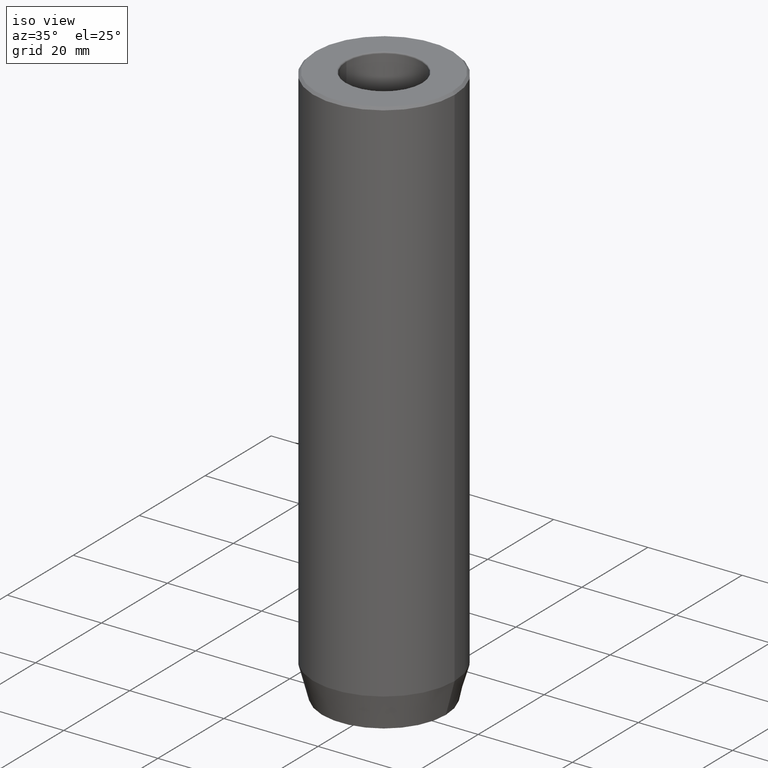
[diagram: clean part render]
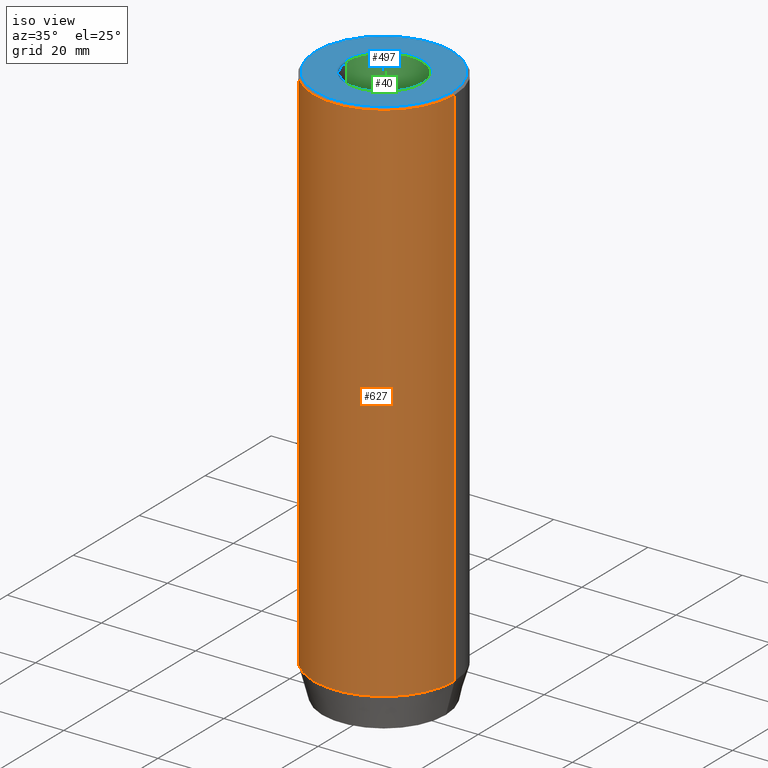
[diagram: same view with three faces highlighted in distinct colors, each labeled with its STEP entity id]
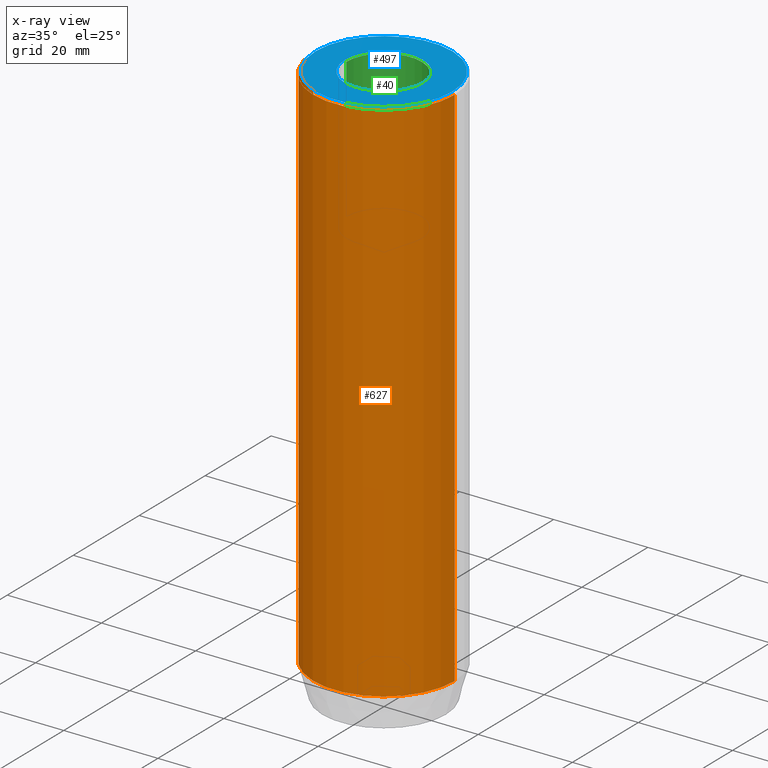
[diagram: x-ray of the same camera — body ghosted, the three highlighted faces saturated]
A machine part, iso view with three faces highlighted in distinct colors.
The next image is the same camera in x-ray (body ghosted, the three faces saturated) — at least one of them is partly hidden behind the body in this view.
Their STEP definitions:

[orange] entity #627 — the highlighted cylindrical surface (partial cylindrical patch) has radius 15 mm, axis along (-0, -0, 1).
#21 = CARTESIAN_POINT ( 'NONE',  ( 0.000000000000000000, 0.000000000000000000, -112.9999999999999858 ) ) ;
#39 = CARTESIAN_POINT ( 'NONE',  ( -15.00000000000000000, 1.836970198721029589E-15, -112.9999999999999858 ) ) ;
#58 = CIRCLE ( 'NONE', #538, 15.00000000000000000 ) ;
#61 = ORIENTED_EDGE ( 'NONE', *, *, #132, .F. ) ;
#70 = VERTEX_POINT ( 'NONE', #230 ) ;
#89 = DIRECTION ( 'NONE',  ( -0.000000000000000000, -0.000000000000000000, 1.000000000000000000 ) ) ;
#94 = LINE ( 'NONE', #574, #143 ) ;
#114 = CIRCLE ( 'NONE', #284, 15.00000000000000000 ) ;
#131 = EDGE_LOOP ( 'NONE', ( #61, #282, #505, #327 ) ) ;
#132 = EDGE_CURVE ( 'NONE', #160, #70, #94, .T. ) ;
#143 = VECTOR ( 'NONE', #89, 1000.000000000000000 ) ;
#160 = VERTEX_POINT ( 'NONE', #39 ) ;
#211 = VECTOR ( 'NONE', #309, 1000.000000000000000 ) ;
#230 = CARTESIAN_POINT ( 'NONE',  ( -15.00000000000000000, 1.836970198721029589E-15, -0.4999999999999970024 ) ) ;
#238 = CARTESIAN_POINT ( 'NONE',  ( 0.000000000000000000, 0.000000000000000000, 0.000000000000000000 ) ) ;
#252 = DIRECTION ( 'NONE',  ( 1.000000000000000000, 0.000000000000000000, 0.000000000000000000 ) ) ;
#259 = EDGE_CURVE ( 'NONE', #262, #596, #496, .T. ) ;
#262 = VERTEX_POINT ( 'NONE', #602 ) ;
#274 = DIRECTION ( 'NONE',  ( -0.000000000000000000, -0.000000000000000000, 1.000000000000000000 ) ) ;
#282 = ORIENTED_EDGE ( 'NONE', *, *, #524, .T. ) ;
#284 = AXIS2_PLACEMENT_3D ( 'NONE', #21, #274, #318 ) ;
#303 = DIRECTION ( 'NONE',  ( -0.000000000000000000, -0.000000000000000000, 1.000000000000000000 ) ) ;
#309 = DIRECTION ( 'NONE',  ( -0.000000000000000000, -0.000000000000000000, 1.000000000000000000 ) ) ;
#318 = DIRECTION ( 'NONE',  ( 1.000000000000000000, 0.000000000000000000, 0.000000000000000000 ) ) ;
#327 = ORIENTED_EDGE ( 'NONE', *, *, #585, .T. ) ;
#352 = CARTESIAN_POINT ( 'NONE',  ( 0.000000000000000000, 0.000000000000000000, -0.4999999999999970024 ) ) ;
#389 = DIRECTION ( 'NONE',  ( 0.000000000000000000, 0.000000000000000000, -1.000000000000000000 ) ) ;
#468 = AXIS2_PLACEMENT_3D ( 'NONE', #238, #303, #252 ) ;
#496 = LINE ( 'NONE', #595, #211 ) ;
#505 = ORIENTED_EDGE ( 'NONE', *, *, #259, .T. ) ;
#524 = EDGE_CURVE ( 'NONE', #160, #262, #114, .T. ) ;
#538 = AXIS2_PLACEMENT_3D ( 'NONE', #352, #389, #587 ) ;
#540 = FACE_OUTER_BOUND ( 'NONE', #131, .T. ) ;
#542 = CARTESIAN_POINT ( 'NONE',  ( 15.00000000000000000, 0.000000000000000000, -0.4999999999999970024 ) ) ;
#573 = CYLINDRICAL_SURFACE ( 'NONE', #468, 15.00000000000000000 ) ;
#574 = CARTESIAN_POINT ( 'NONE',  ( -15.00000000000000000, 1.836970198721029589E-15, 0.000000000000000000 ) ) ;
#585 = EDGE_CURVE ( 'NONE', #596, #70, #58, .T. ) ;
#587 = DIRECTION ( 'NONE',  ( 1.000000000000000000, 0.000000000000000000, 0.000000000000000000 ) ) ;
#595 = CARTESIAN_POINT ( 'NONE',  ( 15.00000000000000000, 0.000000000000000000, 0.000000000000000000 ) ) ;
#596 = VERTEX_POINT ( 'NONE', #542 ) ;
#602 = CARTESIAN_POINT ( 'NONE',  ( 15.00000000000000000, 0.000000000000000000, -112.9999999999999858 ) ) ;
#627 = ADVANCED_FACE ( 'NONE', ( #540 ), #573, .T. ) ;

[blue] entity #497 — the highlighted planar face has unit normal (0, -0, 1).
#9 = ORIENTED_EDGE ( 'NONE', *, *, #316, .T. ) ;
#13 = CARTESIAN_POINT ( 'NONE',  ( 0.000000000000000000, 0.000000000000000000, 0.000000000000000000 ) ) ;
#17 = FACE_BOUND ( 'NONE', #270, .T. ) ;
#36 = CIRCLE ( 'NONE', #57, 8.299999999999997158 ) ;
#55 = ORIENTED_EDGE ( 'NONE', *, *, #365, .T. ) ;
#57 = AXIS2_PLACEMENT_3D ( 'NONE', #13, #97, #549 ) ;
#97 = DIRECTION ( 'NONE',  ( 0.000000000000000000, 0.000000000000000000, -1.000000000000000000 ) ) ;
#102 = CIRCLE ( 'NONE', #312, 14.49999999999999645 ) ;
#135 = DIRECTION ( 'NONE',  ( 1.000000000000000000, 0.000000000000000000, 0.000000000000000000 ) ) ;
#146 = AXIS2_PLACEMENT_3D ( 'NONE', #492, #625, #135 ) ;
#153 = EDGE_CURVE ( 'NONE', #178, #513, #452, .T. ) ;
#167 = CARTESIAN_POINT ( 'NONE',  ( 0.000000000000000000, 0.000000000000000000, 0.000000000000000000 ) ) ;
#178 = VERTEX_POINT ( 'NONE', #334 ) ;
#195 = VERTEX_POINT ( 'NONE', #539 ) ;
#220 = FACE_OUTER_BOUND ( 'NONE', #475, .T. ) ;
#254 = VERTEX_POINT ( 'NONE', #583 ) ;
#270 = EDGE_LOOP ( 'NONE', ( #380, #9 ) ) ;
#307 = AXIS2_PLACEMENT_3D ( 'NONE', #593, #381, #483 ) ;
#312 = AXIS2_PLACEMENT_3D ( 'NONE', #401, #353, #544 ) ;
#316 = EDGE_CURVE ( 'NONE', #513, #178, #36, .T. ) ;
#334 = CARTESIAN_POINT ( 'NONE',  ( 8.299999999999997158, 0.000000000000000000, 0.000000000000000000 ) ) ;
#348 = AXIS2_PLACEMENT_3D ( 'NONE', #167, #366, #553 ) ;
#353 = DIRECTION ( 'NONE',  ( -0.000000000000000000, -0.000000000000000000, 1.000000000000000000 ) ) ;
#365 = EDGE_CURVE ( 'NONE', #254, #195, #102, .T. ) ;
#366 = DIRECTION ( 'NONE',  ( 0.000000000000000000, -0.000000000000000000, 1.000000000000000000 ) ) ;
#380 = ORIENTED_EDGE ( 'NONE', *, *, #153, .T. ) ;
#381 = DIRECTION ( 'NONE',  ( -0.000000000000000000, -0.000000000000000000, 1.000000000000000000 ) ) ;
#401 = CARTESIAN_POINT ( 'NONE',  ( 0.000000000000000000, 0.000000000000000000, 0.000000000000000000 ) ) ;
#452 = CIRCLE ( 'NONE', #146, 8.299999999999997158 ) ;
#475 = EDGE_LOOP ( 'NONE', ( #55, #510 ) ) ;
#477 = PLANE ( 'NONE',  #348 ) ;
#482 = CIRCLE ( 'NONE', #307, 14.49999999999999645 ) ;
#483 = DIRECTION ( 'NONE',  ( 1.000000000000000000, 0.000000000000000000, 0.000000000000000000 ) ) ;
#492 = CARTESIAN_POINT ( 'NONE',  ( 0.000000000000000000, 0.000000000000000000, 0.000000000000000000 ) ) ;
#497 = ADVANCED_FACE ( 'NONE', ( #17, #220 ), #477, .T. ) ;
#510 = ORIENTED_EDGE ( 'NONE', *, *, #617, .T. ) ;
#513 = VERTEX_POINT ( 'NONE', #607 ) ;
#539 = CARTESIAN_POINT ( 'NONE',  ( 14.49999999999999645, 1.806354028742345802E-15, 0.000000000000000000 ) ) ;
#544 = DIRECTION ( 'NONE',  ( 1.000000000000000000, 0.000000000000000000, 0.000000000000000000 ) ) ;
#549 = DIRECTION ( 'NONE',  ( 1.000000000000000000, 0.000000000000000000, 0.000000000000000000 ) ) ;
#553 = DIRECTION ( 'NONE',  ( 1.000000000000000000, 0.000000000000000000, 0.000000000000000000 ) ) ;
#583 = CARTESIAN_POINT ( 'NONE',  ( -14.49999999999999645, 0.000000000000000000, 0.000000000000000000 ) ) ;
#593 = CARTESIAN_POINT ( 'NONE',  ( 0.000000000000000000, 0.000000000000000000, 0.000000000000000000 ) ) ;
#607 = CARTESIAN_POINT ( 'NONE',  ( -8.299999999999997158, 1.016456843292302637E-15, 0.000000000000000000 ) ) ;
#617 = EDGE_CURVE ( 'NONE', #195, #254, #482, .T. ) ;
#625 = DIRECTION ( 'NONE',  ( 0.000000000000000000, 0.000000000000000000, -1.000000000000000000 ) ) ;

[green] entity #40 — the highlighted cylindrical surface (partial cylindrical patch) has radius 8 mm, axis along (-0, -0, 1).
#29 = FACE_OUTER_BOUND ( 'NONE', #361, .T. ) ;
#32 = ORIENTED_EDGE ( 'NONE', *, *, #100, .F. ) ;
#40 = ADVANCED_FACE ( 'NONE', ( #29 ), #373, .F. ) ;
#52 = VECTOR ( 'NONE', #438, 1000.000000000000000 ) ;
#75 = DIRECTION ( 'NONE',  ( 1.000000000000000000, 0.000000000000000000, 0.000000000000000000 ) ) ;
#81 = DIRECTION ( 'NONE',  ( -0.000000000000000000, -0.000000000000000000, 1.000000000000000000 ) ) ;
#96 = CARTESIAN_POINT ( 'NONE',  ( 7.999999999999996447, 0.000000000000000000, 0.000000000000000000 ) ) ;
#100 = EDGE_CURVE ( 'NONE', #191, #302, #375, .T. ) ;
#109 = EDGE_CURVE ( 'NONE', #402, #269, #444, .T. ) ;
#138 = CARTESIAN_POINT ( 'NONE',  ( -7.999999999999994671, 9.797174393178819741E-16, -30.00000000000000000 ) ) ;
#147 = CIRCLE ( 'NONE', #408, 7.999999999999994671 ) ;
#150 = CARTESIAN_POINT ( 'NONE',  ( 7.999999999999996447, 0.000000000000000000, -0.2999999999999999889 ) ) ;
#179 = CARTESIAN_POINT ( 'NONE',  ( 0.000000000000000000, 0.000000000000000000, -0.2999999999999999889 ) ) ;
#191 = VERTEX_POINT ( 'NONE', #138 ) ;
#246 = AXIS2_PLACEMENT_3D ( 'NONE', #179, #525, #75 ) ;
#253 = CARTESIAN_POINT ( 'NONE',  ( -7.999999999999996447, 9.797174393178821713E-16, -0.2999999999999999889 ) ) ;
#258 = ORIENTED_EDGE ( 'NONE', *, *, #109, .T. ) ;
#269 = VERTEX_POINT ( 'NONE', #150 ) ;
#279 = DIRECTION ( 'NONE',  ( -0.000000000000000000, -0.000000000000000000, 1.000000000000000000 ) ) ;
#302 = VERTEX_POINT ( 'NONE', #253 ) ;
#317 = DIRECTION ( 'NONE',  ( 1.000000000000000000, 0.000000000000000000, 0.000000000000000000 ) ) ;
#331 = CARTESIAN_POINT ( 'NONE',  ( 0.000000000000000000, 0.000000000000000000, 0.000000000000000000 ) ) ;
#361 = EDGE_LOOP ( 'NONE', ( #32, #498, #258, #469 ) ) ;
#372 = CARTESIAN_POINT ( 'NONE',  ( 0.000000000000000000, 0.000000000000000000, -30.00000000000000000 ) ) ;
#373 = CYLINDRICAL_SURFACE ( 'NONE', #406, 7.999999999999996447 ) ;
#375 = LINE ( 'NONE', #565, #425 ) ;
#402 = VERTEX_POINT ( 'NONE', #405 ) ;
#405 = CARTESIAN_POINT ( 'NONE',  ( 7.999999999999994671, 0.000000000000000000, -30.00000000000000000 ) ) ;
#406 = AXIS2_PLACEMENT_3D ( 'NONE', #331, #526, #317 ) ;
#408 = AXIS2_PLACEMENT_3D ( 'NONE', #372, #81, #474 ) ;
#425 = VECTOR ( 'NONE', #279, 1000.000000000000000 ) ;
#438 = DIRECTION ( 'NONE',  ( -0.000000000000000000, -0.000000000000000000, 1.000000000000000000 ) ) ;
#444 = LINE ( 'NONE', #96, #52 ) ;
#469 = ORIENTED_EDGE ( 'NONE', *, *, #478, .T. ) ;
#470 = EDGE_CURVE ( 'NONE', #402, #191, #147, .T. ) ;
#474 = DIRECTION ( 'NONE',  ( 1.000000000000000000, 0.000000000000000000, 0.000000000000000000 ) ) ;
#478 = EDGE_CURVE ( 'NONE', #269, #302, #508, .T. ) ;
#498 = ORIENTED_EDGE ( 'NONE', *, *, #470, .F. ) ;
#508 = CIRCLE ( 'NONE', #246, 7.999999999999996447 ) ;
#525 = DIRECTION ( 'NONE',  ( -0.000000000000000000, -0.000000000000000000, 1.000000000000000000 ) ) ;
#526 = DIRECTION ( 'NONE',  ( -0.000000000000000000, -0.000000000000000000, 1.000000000000000000 ) ) ;
#565 = CARTESIAN_POINT ( 'NONE',  ( -7.999999999999996447, 9.797174393178821713E-16, 0.000000000000000000 ) ) ;